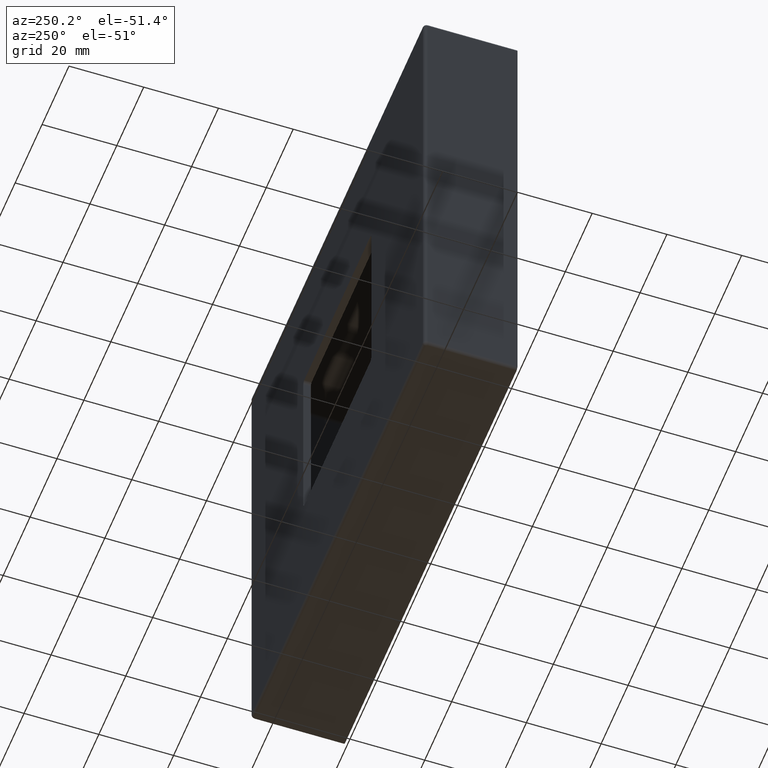
[diagram: clean part render]
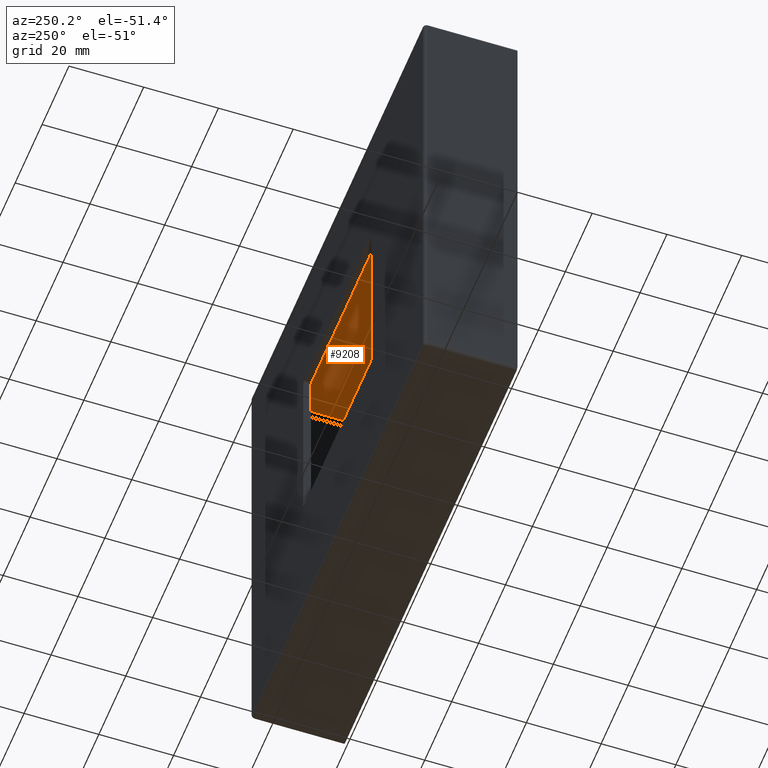
[diagram: same view with one face highlighted and labeled with its STEP entity id]
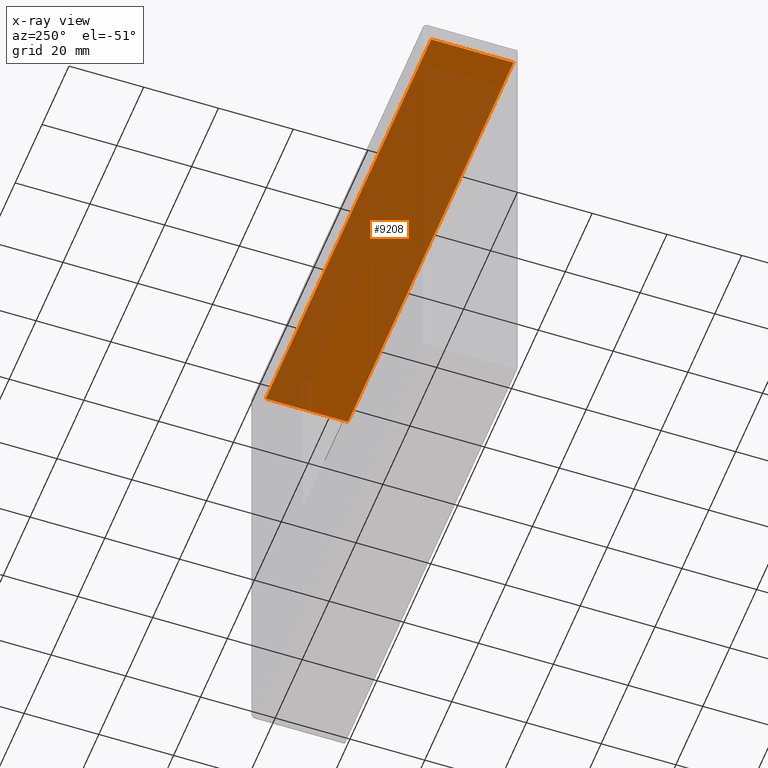
[diagram: x-ray of the same camera — body ghosted, the highlighted face saturated]
A machine part, auxiliary view. The second image highlights one B-rep face of the part: STEP entity #9208.
The next image is the same camera in x-ray: the body ghosted, the highlighted face saturated — about 75% of this face is hidden behind the body in this view.
In plain terms, the highlighted planar face has unit normal (0, 0, -1).
Its self-contained STEP definition (entity closure, byte-faithful):
#1189 = VECTOR ( 'NONE', #9646, 1000.000000000000000 ) ;
#2147 = LINE ( 'NONE', #5713, #11181 ) ;
#2612 = ORIENTED_EDGE ( 'NONE', *, *, #13656, .T. ) ;
#2671 = CARTESIAN_POINT ( 'NONE',  ( 61.50000000000000000, 0.000000000000000000, 62.50000000000000000 ) ) ;
#2906 = CARTESIAN_POINT ( 'NONE',  ( -64.49999999999997158, 25.00000000000000000, 62.50000000000000000 ) ) ;
#3592 = FACE_OUTER_BOUND ( 'NONE', #10779, .T. ) ;
#4008 = CARTESIAN_POINT ( 'NONE',  ( 61.50000000000000000, 22.00000000000000000, 62.50000000000000000 ) ) ;
#4442 = VERTEX_POINT ( 'NONE', #2671 ) ;
#5406 = LINE ( 'NONE', #8354, #1189 ) ;
#5713 = CARTESIAN_POINT ( 'NONE',  ( -61.49999999999997158, 23.00000000000000000, 62.50000000000000000 ) ) ;
#6225 = DIRECTION ( 'NONE',  ( 1.000000000000000000, -0.000000000000000000, 0.000000000000000000 ) ) ;
#6295 = CARTESIAN_POINT ( 'NONE',  ( -61.49999999999997158, 22.00000000000000000, 62.50000000000000000 ) ) ;
#8354 = CARTESIAN_POINT ( 'NONE',  ( -64.49999999999997158, 0.000000000000000000, 62.50000000000000000 ) ) ;
#8526 = VERTEX_POINT ( 'NONE', #14527 ) ;
#8852 = ORIENTED_EDGE ( 'NONE', *, *, #14942, .F. ) ;
#8996 = DIRECTION ( 'NONE',  ( 0.000000000000000000, 0.000000000000000000, -1.000000000000000000 ) ) ;
#9208 = ADVANCED_FACE ( 'NONE', ( #3592 ), #15127, .T. ) ;
#9646 = DIRECTION ( 'NONE',  ( 1.000000000000000000, -0.000000000000000000, 0.000000000000000000 ) ) ;
#9775 = AXIS2_PLACEMENT_3D ( 'NONE', #2906, #8996, #12938 ) ;
#10471 = VECTOR ( 'NONE', #6225, 1000.000000000000000 ) ;
#10497 = DIRECTION ( 'NONE',  ( 0.000000000000000000, -1.000000000000000000, 0.000000000000000000 ) ) ;
#10774 = DIRECTION ( 'NONE',  ( -0.000000000000000000, 1.000000000000000000, -0.000000000000000000 ) ) ;
#10779 = EDGE_LOOP ( 'NONE', ( #15135, #2612, #8852, #15151 ) ) ;
#11181 = VECTOR ( 'NONE', #10774, 1000.000000000000000 ) ;
#11475 = EDGE_CURVE ( 'NONE', #12099, #15398, #13750, .T. ) ;
#11838 = CARTESIAN_POINT ( 'NONE',  ( 61.50000000000000000, 0.000000000000000000, 62.50000000000000000 ) ) ;
#12099 = VERTEX_POINT ( 'NONE', #6295 ) ;
#12938 = DIRECTION ( 'NONE',  ( -1.000000000000000000, 0.000000000000000000, -0.000000000000000000 ) ) ;
#13652 = CARTESIAN_POINT ( 'NONE',  ( -64.49999999999997158, 22.00000000000000000, 62.50000000000000000 ) ) ;
#13656 = EDGE_CURVE ( 'NONE', #15398, #4442, #14836, .T. ) ;
#13750 = LINE ( 'NONE', #13652, #10471 ) ;
#14464 = VECTOR ( 'NONE', #10497, 1000.000000000000000 ) ;
#14527 = CARTESIAN_POINT ( 'NONE',  ( -61.49999999999997158, 0.000000000000000000, 62.50000000000000000 ) ) ;
#14836 = LINE ( 'NONE', #11838, #14464 ) ;
#14942 = EDGE_CURVE ( 'NONE', #8526, #4442, #5406, .T. ) ;
#15127 = PLANE ( 'NONE',  #9775 ) ;
#15135 = ORIENTED_EDGE ( 'NONE', *, *, #11475, .T. ) ;
#15151 = ORIENTED_EDGE ( 'NONE', *, *, #15244, .T. ) ;
#15244 = EDGE_CURVE ( 'NONE', #8526, #12099, #2147, .T. ) ;
#15398 = VERTEX_POINT ( 'NONE', #4008 ) ;